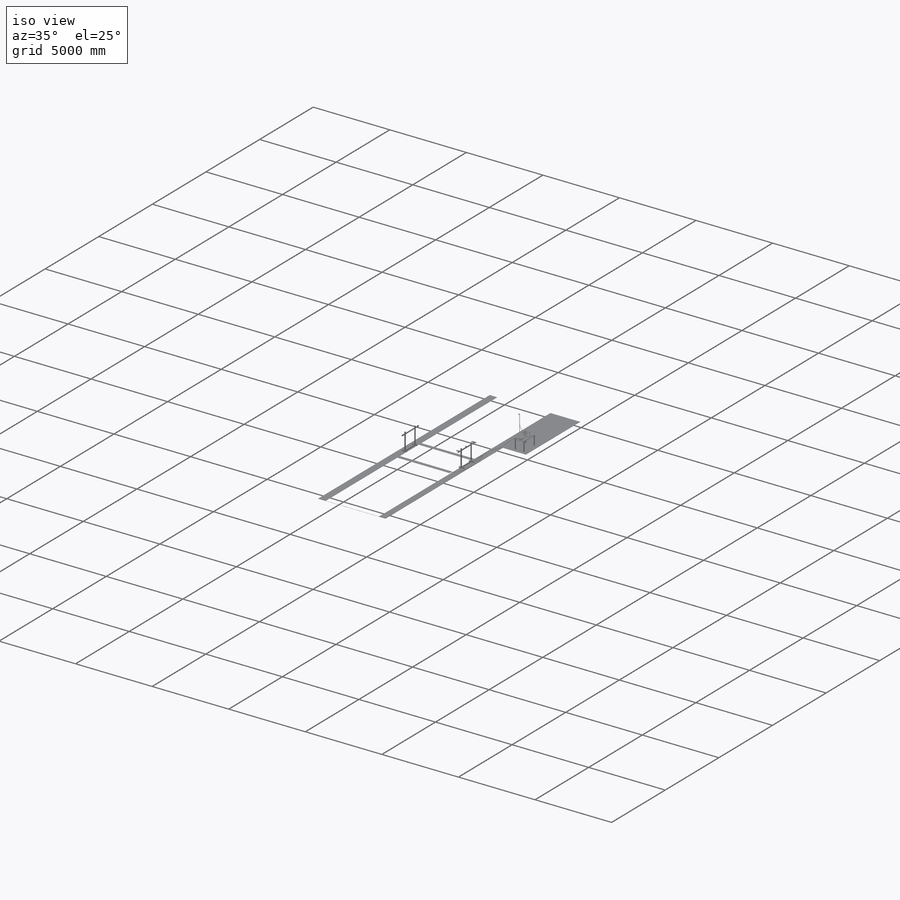
[diagram: iso view]
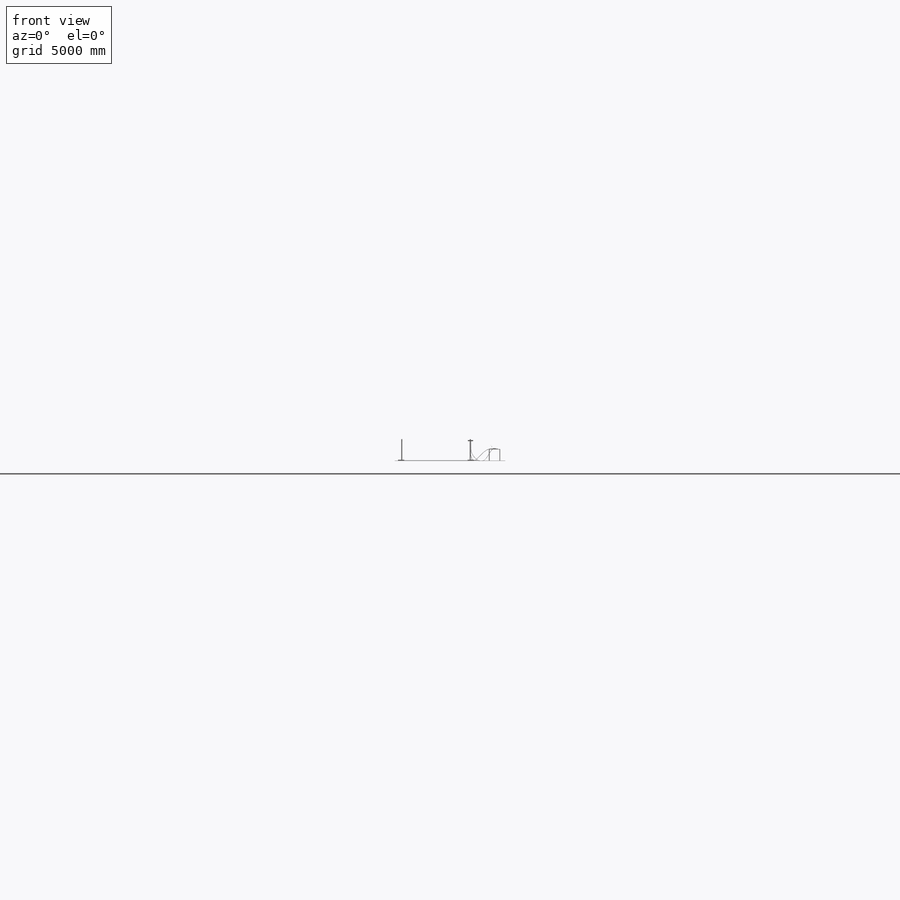
[diagram: front view]
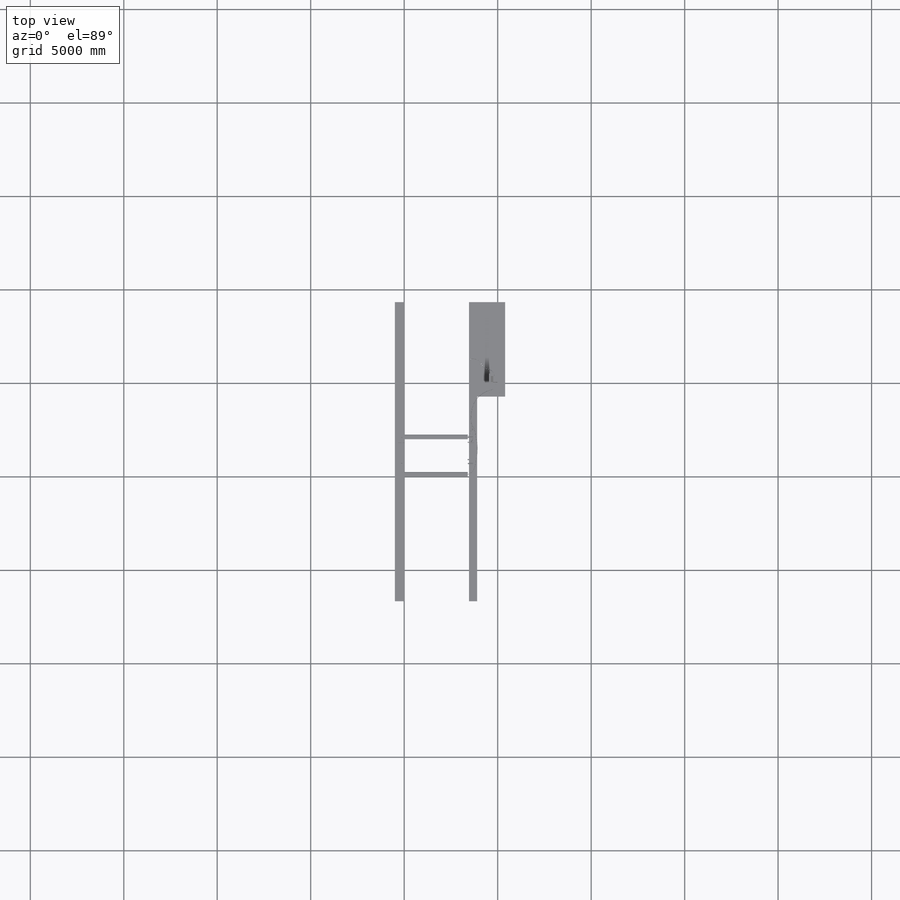
[diagram: top view]
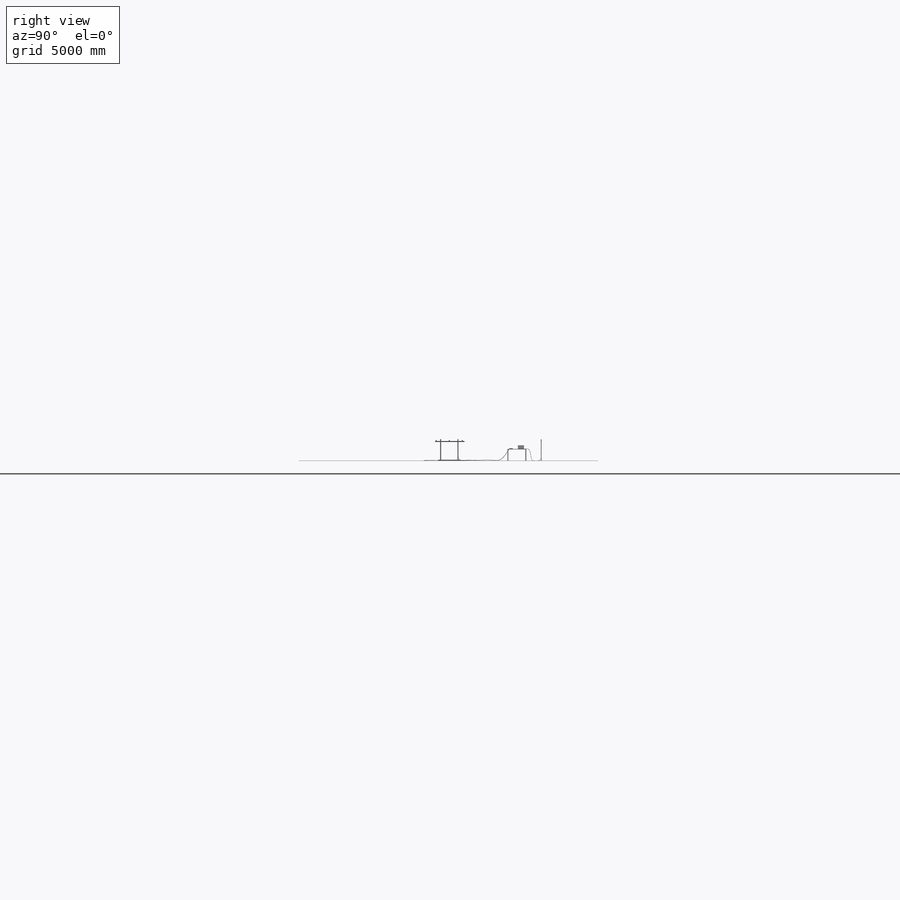
[diagram: right view]
SOLIDWORKS PART (.sldprt)
format: sldprt  version: not decoded by parser v0  size: 1,488,896 bytes
history: native  units: mm
features: sketch x47, extrude x21, plane x6, sweep x6, fillet x2, material x1, mirror x1 (+13 scaffold rows collapsed)
feature tree (97):
  scaffold x13  (default folders/planes/origin — collapsed)
  material  "Material <not specified>"
  sketch  "Sketch1"  dims[D1=250.0mm D2=20.0mm D3=2.0]
  extrude  "Boss-Extrude1"  Depth=3400mm
  sketch  "Sketch2"
  extrude  "Boss-Extrude2"  Depth=10mm
  sketch  "Sketch3"  dims[D1=0.0mm]
  extrude  "Boss-Extrude3"  Depth=500mm
  sketch  "Sketch4"
  extrude  "Boss-Extrude4"  Depth=50mm
  sketch  "Sketch5"  dims[D1=0.0mm]
  extrude  "Boss-Extrude5"  Depth=500mm
  sketch  "Sketch6"
  extrude  "Boss-Extrude6"  Depth=1100mm
  plane  "Plane1"  Offset=1000mm
  sketch  "Sketch7"  dims[D1=0.0mm]
  extrude  "Boss-Extrude7"  Depth=50mm
  plane  "Plane2"  Offset=1700mm
  mirror  "Mirror4"
  sketch  "Sketch8"  dims[D1=60.0mm D2=2.0]
  extrude  "Boss-Extrude8"  Depth=130mm
  sketch  "Sketch9"  dims[D1=2.0]
  extrude  "Boss-Extrude9"  Depth=60mm
  sketch  "Sketch10"
  extrude  "Boss-Extrude10"  Depth=1500mm
  plane  "Plane3"  Offset=600mm
  sketch  "Sketch11"  dims[D1=1000.0mm D2=600.0mm]
  extrude  "Boss-Extrude11"  Depth=20mm
  sketch  "Sketch12"  dims[D1=0.0mm]
  extrude  "Boss-Extrude12"  Depth=620mm
  sketch  "Sketch13"
  extrude  "Boss-Extrude13"  Depth=20mm
  fillet  "Fillet1"  Radius=10mm
  fillet  "Fillet2"  Radius=3mm
  sketch  "Sketch14"
  extrude  "Boss-Extrude14"  Depth=325mm
  sketch  "Sketch15"
  extrude  "Boss-Extrude15"  Depth=40mm
  sketch  "Sketch17"
  sketch  "Sketch18"
  sketch  "Sketch19"
  plane  "Plane4"  Offset=20mm
  sketch  "Sketch22"
  sketch  "3DSketch2"
  sweep  "Sweep2"
  sketch  "Sketch23"
  sketch  "Sketch24"
  sketch  "3DSketch3"
  sketch  "Sketch25"
  sketch  "3DSketch4"
  sweep  "Sweep3"
  sweep  "Sweep4"
  sketch  "Sketch25<2>"
  sketch  "Sketch28"
  sketch  "Sketch29"
  sketch  "3DSketch7"
  sweep  "Sweep5"
  sketch  "Sketch25<3>"
  sketch  "Sketch30"
  sketch  "Sketch31"
  plane  "Plane5"  Offset=10mm
  sketch  "Sketch33"
  sketch  "3DSketch8"
  sketch  "Sketch34"
  sweep  "Sweep6"
  sketch  "Sketch36"
  extrude  "Boss-Extrude16"  Depth=70mm
  sketch  "Sketch37"
  extrude  "Boss-Extrude17"  Depth=1100mm
  sketch  "Sketch38"
  extrude  "Boss-Extrude18"  Depth=60mm
  sketch  "Sketch39"
  plane  "Plane6"  Offset=500mm
  sketch  "Sketch40"
  sketch  "Sketch41"
  sketch  "3DSketch9"
  sketch  "Sketch42"
  sweep  "Sweep7"
  sketch  "Sketch43"
  extrude  "Boss-Extrude19"  Depth=1mm
  sketch  "Sketch44"  dims[D1=1000.0mm]
  sketch  "Sketch45"  dims[D1=0.0mm]
  extrude  "Boss-Extrude20"  Depth=15000mm
  sketch  "Sketch46"  dims[D1=0.0mm]
  extrude  "Boss-Extrude21"  Depth=15000mm
decode coverage: 34 of 77 modeling features carry decoded parameters
summary: profile_refs inferred from adjacent sketches, not decoded
note: suppression state not decoded; provenance and decode notes live in map.json
